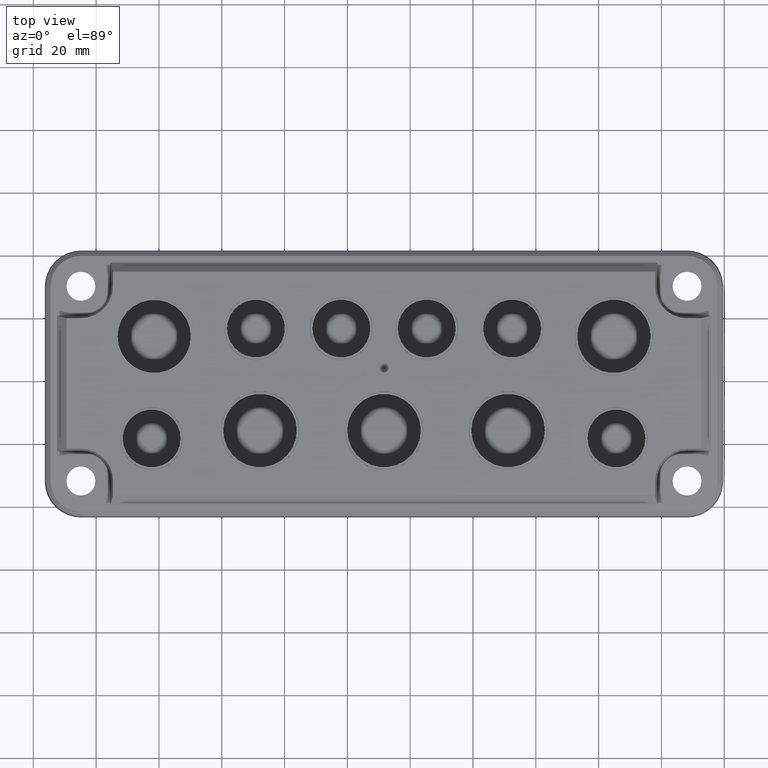
[diagram: clean part render]
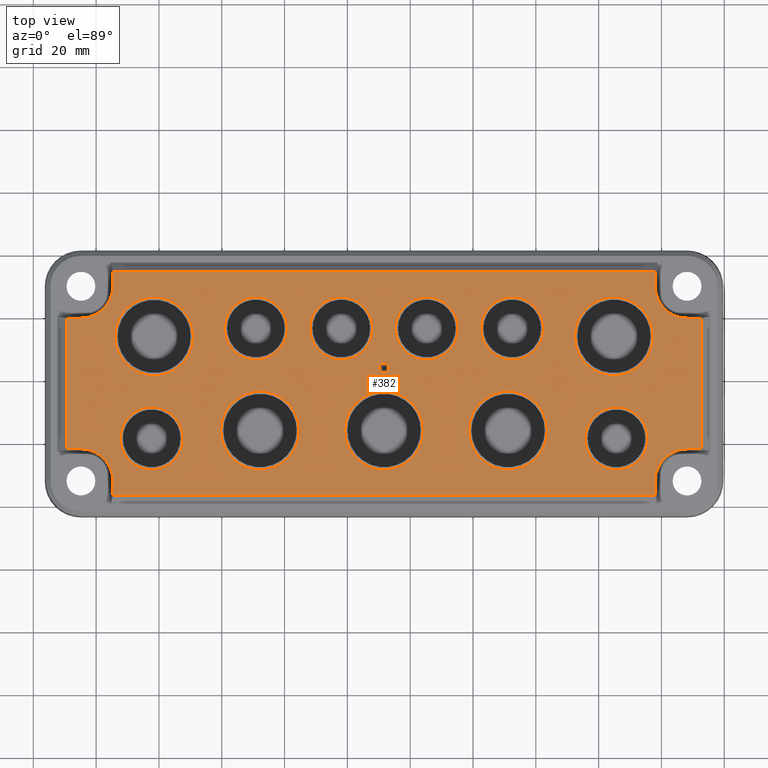
[diagram: same view with one face highlighted and labeled with its STEP entity id]
A machine part, top view. The second image highlights one B-rep face of the part: STEP entity #382.
In plain terms, the highlighted planar face has unit normal (0, 0, 1).
Its self-contained STEP definition (entity closure, byte-faithful):
#2 = AXIS2_PLACEMENT_3D ( 'NONE', #10146, #14187, #12707 ) ;
#7 = DIRECTION ( 'NONE',  ( -0.0000000000000000000, 0.0000000000000000000, -1.000000000000000000 ) ) ;
#41 = VERTEX_POINT ( 'NONE', #1336 ) ;
#93 = AXIS2_PLACEMENT_3D ( 'NONE', #11499, #17014, #9821 ) ;
#118 = AXIS2_PLACEMENT_3D ( 'NONE', #17719, #9667, #13714 ) ;
#199 = ORIENTED_EDGE ( 'NONE', *, *, #13028, .T. ) ;
#221 = DIRECTION ( 'NONE',  ( -0.0000000000000000000, -0.0000000000000000000, -1.000000000000000000 ) ) ;
#244 = DIRECTION ( 'NONE',  ( -1.000000000000000000, 0.0000000000000000000, 0.0000000000000000000 ) ) ;
#297 = EDGE_LOOP ( 'NONE', ( #8575, #12141 ) ) ;
#319 = EDGE_CURVE ( 'NONE', #5922, #2527, #6236, .T. ) ;
#336 = DIRECTION ( 'NONE',  ( 1.000000000000000000, 0.0000000000000000000, 0.0000000000000000000 ) ) ;
#351 = ORIENTED_EDGE ( 'NONE', *, *, #12371, .T. ) ;
#382 = ADVANCED_FACE ( 'NONE', ( #6010, #10531, #14428, #9458, #15060, #16549, #16961, #10969, #10756, #17829, #13322, #9005, #16763 ), #3840, .T. ) ;
#391 = DIRECTION ( 'NONE',  ( 0.0000000000000000000, -1.000000000000000000, 1.734723475976805600E-016 ) ) ;
#417 = EDGE_CURVE ( 'NONE', #3770, #11835, #12874, .T. ) ;
#454 = CIRCLE ( 'NONE', #1783, 10.00000000000000900 ) ;
#564 = LINE ( 'NONE', #15503, #13703 ) ;
#706 = VERTEX_POINT ( 'NONE', #15121 ) ;
#777 = VERTEX_POINT ( 'NONE', #3331 ) ;
#841 = CARTESIAN_POINT ( 'NONE',  ( 138.4606648836394800, 154.0381894054246500, 10.50000000000000000 ) ) ;
#843 = EDGE_CURVE ( 'NONE', #11388, #5484, #4279, .T. ) ;
#890 = ORIENTED_EDGE ( 'NONE', *, *, #13187, .T. ) ;
#910 = AXIS2_PLACEMENT_3D ( 'NONE', #6290, #7427, #11755 ) ;
#968 = CARTESIAN_POINT ( 'NONE',  ( 297.9637589617232700, 103.4739564246825100, 10.50000000000000200 ) ) ;
#1090 = CARTESIAN_POINT ( 'NONE',  ( 110.5964319028973200, 159.8412834835084500, 10.49999999999999800 ) ) ;
#1207 = AXIS2_PLACEMENT_3D ( 'NONE', #12813, #10255, #14174 ) ;
#1257 = AXIS2_PLACEMENT_3D ( 'NONE', #16689, #5570, #12357 ) ;
#1264 = ORIENTED_EDGE ( 'NONE', *, *, #11732, .T. ) ;
#1336 = CARTESIAN_POINT ( 'NONE',  ( 199.1606648836394400, 124.0381894054246300, 10.50000000000000900 ) ) ;
#1362 = VERTEX_POINT ( 'NONE', #9938 ) ;
#1363 = CIRCLE ( 'NONE', #10388, 12.50000000000001100 ) ;
#1372 = CARTESIAN_POINT ( 'NONE',  ( 125.3575708055556200, 181.5381894054245900, 10.50000000000000000 ) ) ;
#1383 = DIRECTION ( 'NONE',  ( -0.0000000000000000000, 0.0000000000000000000, -1.000000000000000000 ) ) ;
#1396 = VERTEX_POINT ( 'NONE', #15302 ) ;
#1442 = DIRECTION ( 'NONE',  ( -1.000000000000000000, -0.0000000000000000000, 0.0000000000000000000 ) ) ;
#1451 = AXIS2_PLACEMENT_3D ( 'NONE', #6975, #2708, #15092 ) ;
#1532 = EDGE_LOOP ( 'NONE', ( #890, #16820, #10572, #17034, #5449, #8492, #16315, #4714, #15656, #351, #17462, #7539, #16618, #1966, #1264, #5202 ) ) ;
#1597 = EDGE_CURVE ( 'NONE', #1362, #1396, #12210, .T. ) ;
#1599 = DIRECTION ( 'NONE',  ( -0.0000000000000000000, -0.0000000000000000000, -1.000000000000000000 ) ) ;
#1619 = EDGE_LOOP ( 'NONE', ( #5403, #8547 ) ) ;
#1705 = VERTEX_POINT ( 'NONE', #4798 ) ;
#1783 = AXIS2_PLACEMENT_3D ( 'NONE', #17837, #5586, #5708 ) ;
#1824 = VERTEX_POINT ( 'NONE', #3727 ) ;
#1966 = ORIENTED_EDGE ( 'NONE', *, *, #14393, .T. ) ;
#2075 = CARTESIAN_POINT ( 'NONE',  ( 213.1606648836736900, 144.0381894054246200, 10.49999999997908200 ) ) ;
#2172 = DIRECTION ( 'NONE',  ( 1.000000000000000000, 0.0000000000000000000, 0.0000000000000000000 ) ) ;
#2182 = EDGE_CURVE ( 'NONE', #1824, #13444, #16306, .T. ) ;
#2264 = DIRECTION ( 'NONE',  ( -0.0000000000000000000, 0.0000000000000000000, -1.000000000000000000 ) ) ;
#2315 = CIRCLE ( 'NONE', #8446, 12.50000000000001100 ) ;
#2321 = CARTESIAN_POINT ( 'NONE',  ( 124.1606648836394400, 118.2350953273407900, 10.50000000000000000 ) ) ;
#2375 = DIRECTION ( 'NONE',  ( 1.000000000000000000, 0.0000000000000000000, 0.0000000000000000000 ) ) ;
#2495 = DIRECTION ( 'NONE',  ( -0.0000000000000000000, 0.0000000000000000000, -1.000000000000000000 ) ) ;
#2521 = LINE ( 'NONE', #2321, #11547 ) ;
#2527 = VERTEX_POINT ( 'NONE', #4119 ) ;
#2601 = EDGE_LOOP ( 'NONE', ( #13353, #13179 ) ) ;
#2663 = DIRECTION ( 'NONE',  ( 1.000000000000000000, 0.0000000000000000000, 0.0000000000000000000 ) ) ;
#2708 = DIRECTION ( 'NONE',  ( -0.0000000000000000000, 0.0000000000000000000, -1.000000000000000000 ) ) ;
#2748 = VERTEX_POINT ( 'NONE', #9019 ) ;
#2763 = CARTESIAN_POINT ( 'NONE',  ( 252.4606648836394500, 146.5381894054246500, 10.50000000000001100 ) ) ;
#2788 = VERTEX_POINT ( 'NONE', #10666 ) ;
#2922 = CARTESIAN_POINT ( 'NONE',  ( 297.3606648836395200, 154.0381894054246500, 10.50000000000000900 ) ) ;
#2985 = AXIS2_PLACEMENT_3D ( 'NONE', #8118, #6694, #3871 ) ;
#3119 = AXIS2_PLACEMENT_3D ( 'NONE', #10042, #4444, #244 ) ;
#3152 = CARTESIAN_POINT ( 'NONE',  ( 115.1606648836394700, 118.2350953273407400, 10.50000000000000200 ) ) ;
#3192 = EDGE_CURVE ( 'NONE', #16245, #1705, #16913, .T. ) ;
#3232 = DIRECTION ( 'NONE',  ( -1.000000000000000000, -0.0000000000000000000, 0.0000000000000000000 ) ) ;
#3266 = EDGE_CURVE ( 'NONE', #11664, #14150, #16290, .T. ) ;
#3274 = CARTESIAN_POINT ( 'NONE',  ( 125.3575708055556500, 181.5381894054245900, 10.50000000000000000 ) ) ;
#3331 = CARTESIAN_POINT ( 'NONE',  ( 115.1606648836394600, 159.8412834835084500, 10.50000000000000200 ) ) ;
#3336 = VERTEX_POINT ( 'NONE', #11382 ) ;
#3459 = AXIS2_PLACEMENT_3D ( 'NONE', #14691, #13287, #2172 ) ;
#3500 = EDGE_CURVE ( 'NONE', #11643, #6463, #15854, .T. ) ;
#3515 = AXIS2_PLACEMENT_3D ( 'NONE', #13311, #6464, #2375 ) ;
#3524 = DIRECTION ( 'NONE',  ( -1.000000000000000000, -0.0000000000000000000, 0.0000000000000000000 ) ) ;
#3561 = EDGE_LOOP ( 'NONE', ( #11671, #7396 ) ) ;
#3727 = CARTESIAN_POINT ( 'NONE',  ( 208.0606648836395000, 156.5381894054246700, 10.50000000000000900 ) ) ;
#3742 = CIRCLE ( 'NONE', #15296, 10.00000000000000900 ) ;
#3765 = DIRECTION ( 'NONE',  ( 1.000000000000000000, 0.0000000000000000000, 0.0000000000000000000 ) ) ;
#3770 = VERTEX_POINT ( 'NONE', #17179 ) ;
#3791 = ORIENTED_EDGE ( 'NONE', *, *, #3266, .T. ) ;
#3820 = CIRCLE ( 'NONE', #7538, 10.00000000000000900 ) ;
#3840 = PLANE ( 'NONE',  #12409 ) ;
#3843 = DIRECTION ( 'NONE',  ( -0.0000000000000000000, 1.000000000000000000, 0.0000000000000000000 ) ) ;
#3862 = EDGE_LOOP ( 'NONE', ( #8740, #13204 ) ) ;
#3871 = DIRECTION ( 'NONE',  ( 0.0000000000000000000, -1.000000000000000000, 1.734723475976805600E-016 ) ) ;
#3901 = DIRECTION ( 'NONE',  ( 0.0000000000000000000, -1.000000000000000000, -0.0000000000000000000 ) ) ;
#3904 = CARTESIAN_POINT ( 'NONE',  ( 137.6606648836394700, 121.5381894054246200, 10.50000000000000900 ) ) ;
#3960 = CARTESIAN_POINT ( 'NONE',  ( 110.5964319028973400, 181.5381894054245900, 10.50000000000000000 ) ) ;
#3961 = VERTEX_POINT ( 'NONE', #12098 ) ;
#3982 = CIRCLE ( 'NONE', #12960, 10.00000000000000900 ) ;
#4119 = CARTESIAN_POINT ( 'NONE',  ( 110.5964319028973200, 118.2350953273407700, 10.49999999999999800 ) ) ;
#4197 = CARTESIAN_POINT ( 'NONE',  ( 124.1606648836394400, 174.6024223861667500, 10.50000000000000000 ) ) ;
#4204 = AXIS2_PLACEMENT_3D ( 'NONE', #12940, #5921, #8843 ) ;
#4246 = LINE ( 'NONE', #10503, #8321 ) ;
#4279 = CIRCLE ( 'NONE', #93, 10.00000000000000900 ) ;
#4288 = CARTESIAN_POINT ( 'NONE',  ( 211.6606648836394700, 144.0381894054246200, 10.49999999997908200 ) ) ;
#4306 = CARTESIAN_POINT ( 'NONE',  ( 211.6606648836394700, 124.0381894054246300, 10.50000000000000900 ) ) ;
#4382 = CARTESIAN_POINT ( 'NONE',  ( 235.2606648836394600, 156.5381894054246700, 10.50000000000000900 ) ) ;
#4421 = CARTESIAN_POINT ( 'NONE',  ( 180.8606648836394900, 156.5381894054246700, 10.50000000000000900 ) ) ;
#4436 = VERTEX_POINT ( 'NONE', #968 ) ;
#4444 = DIRECTION ( 'NONE',  ( 0.0000000000000000000, 0.0000000000000000000, -1.000000000000000000 ) ) ;
#4449 = EDGE_CURVE ( 'NONE', #13639, #2748, #8286, .T. ) ;
#4484 = CARTESIAN_POINT ( 'NONE',  ( 170.8606648836394900, 156.5381894054246700, 10.50000000000000900 ) ) ;
#4489 = CARTESIAN_POINT ( 'NONE',  ( 124.1606648836394400, 118.2350953273407600, 10.50000000000000000 ) ) ;
#4605 = VECTOR ( 'NONE', #3843, 1000.000000000000000 ) ;
#4713 = EDGE_LOOP ( 'NONE', ( #10749, #199 ) ) ;
#4714 = ORIENTED_EDGE ( 'NONE', *, *, #11010, .T. ) ;
#4752 = CIRCLE ( 'NONE', #17543, 10.00000000000000900 ) ;
#4798 = CARTESIAN_POINT ( 'NONE',  ( 125.3575708055556200, 170.0381894054246200, 10.50000000000000000 ) ) ;
#4919 = VERTEX_POINT ( 'NONE', #16444 ) ;
#5056 = AXIS2_PLACEMENT_3D ( 'NONE', #6462, #2495, #3765 ) ;
#5068 = ORIENTED_EDGE ( 'NONE', *, *, #14112, .T. ) ;
#5078 = DIRECTION ( 'NONE',  ( 1.000000000000000000, 0.0000000000000000000, -0.0000000000000000000 ) ) ;
#5097 = DIRECTION ( 'NONE',  ( -1.000000000000000000, 0.0000000000000000000, 0.0000000000000000000 ) ) ;
#5149 = EDGE_CURVE ( 'NONE', #2788, #4436, #6581, .T. ) ;
#5169 = CIRCLE ( 'NONE', #1207, 10.19690592191617500 ) ;
#5202 = ORIENTED_EDGE ( 'NONE', *, *, #6322, .T. ) ;
#5273 = CARTESIAN_POINT ( 'NONE',  ( 297.9637589617232700, 181.5381894054245900, 10.50000000000000000 ) ) ;
#5403 = ORIENTED_EDGE ( 'NONE', *, *, #5446, .T. ) ;
#5445 = CARTESIAN_POINT ( 'NONE',  ( 285.6606648836394700, 111.5381894054246000, 10.50000000000000900 ) ) ;
#5446 = EDGE_CURVE ( 'NONE', #10379, #7875, #13886, .T. ) ;
#5449 = ORIENTED_EDGE ( 'NONE', *, *, #319, .T. ) ;
#5466 = LINE ( 'NONE', #5273, #4605 ) ;
#5484 = VERTEX_POINT ( 'NONE', #6522 ) ;
#5504 = VERTEX_POINT ( 'NONE', #17517 ) ;
#5561 = CARTESIAN_POINT ( 'NONE',  ( 238.6606648836394700, 124.0381894054246200, 10.50000000000000900 ) ) ;
#5570 = DIRECTION ( 'NONE',  ( -0.0000000000000000000, -0.0000000000000000000, -1.000000000000000000 ) ) ;
#5586 = DIRECTION ( 'NONE',  ( -0.0000000000000000000, 0.0000000000000000000, -1.000000000000000000 ) ) ;
#5692 = EDGE_CURVE ( 'NONE', #11835, #3770, #12785, .T. ) ;
#5708 = DIRECTION ( 'NONE',  ( 1.000000000000000000, 0.0000000000000000000, 0.0000000000000000000 ) ) ;
#5714 = VECTOR ( 'NONE', #16300, 1000.000000000000000 ) ;
#5787 = EDGE_LOOP ( 'NONE', ( #7988, #3791 ) ) ;
#5789 = VERTEX_POINT ( 'NONE', #11781 ) ;
#5821 = EDGE_CURVE ( 'NONE', #14354, #3961, #17082, .T. ) ;
#5832 = VECTOR ( 'NONE', #16600, 1000.000000000000000 ) ;
#5921 = DIRECTION ( 'NONE',  ( -0.0000000000000000000, 0.0000000000000000000, -1.000000000000000000 ) ) ;
#5922 = VERTEX_POINT ( 'NONE', #1090 ) ;
#6010 = FACE_BOUND ( 'NONE', #9169, .T. ) ;
#6210 = EDGE_CURVE ( 'NONE', #12934, #5504, #11068, .T. ) ;
#6236 = LINE ( 'NONE', #3960, #11389 ) ;
#6242 = CARTESIAN_POINT ( 'NONE',  ( 150.9606648836394800, 154.0381894054246500, 10.50000000000000000 ) ) ;
#6290 = CARTESIAN_POINT ( 'NONE',  ( 198.0606648836395000, 156.5381894054246700, 10.50000000000000900 ) ) ;
#6322 = EDGE_CURVE ( 'NONE', #12817, #5789, #5466, .T. ) ;
#6375 = CARTESIAN_POINT ( 'NONE',  ( 184.6606648836395000, 124.0381894054246200, 10.50000000000000900 ) ) ;
#6462 = CARTESIAN_POINT ( 'NONE',  ( 251.1606648836394700, 124.0381894054246200, 10.50000000000000900 ) ) ;
#6463 = VERTEX_POINT ( 'NONE', #12480 ) ;
#6464 = DIRECTION ( 'NONE',  ( -0.0000000000000000000, -0.0000000000000000000, -1.000000000000000000 ) ) ;
#6472 = CIRCLE ( 'NONE', #14694, 10.00000000000000900 ) ;
#6522 = CARTESIAN_POINT ( 'NONE',  ( 252.4606648836394500, 166.5381894054246700, 10.50000000000000700 ) ) ;
#6561 = EDGE_CURVE ( 'NONE', #706, #10874, #6980, .T. ) ;
#6581 = LINE ( 'NONE', #17433, #5714 ) ;
#6694 = DIRECTION ( 'NONE',  ( -0.0000000000000000000, -8.673617379884034200E-017, -1.000000000000000000 ) ) ;
#6695 = CARTESIAN_POINT ( 'NONE',  ( 263.6606648836394700, 124.0381894054246200, 10.50000000000000900 ) ) ;
#6722 = ORIENTED_EDGE ( 'NONE', *, *, #417, .T. ) ;
#6783 = DIRECTION ( 'NONE',  ( 0.0000000000000000000, 0.0000000000000000000, 1.000000000000000000 ) ) ;
#6929 = ORIENTED_EDGE ( 'NONE', *, *, #6210, .T. ) ;
#6975 = CARTESIAN_POINT ( 'NONE',  ( 284.8606648836394600, 154.0381894054246500, 10.50000000000000900 ) ) ;
#6980 = CIRCLE ( 'NONE', #2, 10.00000000000000900 ) ;
#7036 = VECTOR ( 'NONE', #1442, 1000.000000000000000 ) ;
#7088 = AXIS2_PLACEMENT_3D ( 'NONE', #841, #10643, #5097 ) ;
#7180 = DIRECTION ( 'NONE',  ( 0.0000000000000000000, -1.000000000000000000, 0.0000000000000000000 ) ) ;
#7238 = DIRECTION ( 'NONE',  ( -0.0000000000000000000, -8.673617379884034200E-017, -1.000000000000000000 ) ) ;
#7300 = ORIENTED_EDGE ( 'NONE', *, *, #10137, .T. ) ;
#7396 = ORIENTED_EDGE ( 'NONE', *, *, #10720, .T. ) ;
#7417 = DIRECTION ( 'NONE',  ( 1.000000000000000000, 0.0000000000000000000, 0.0000000000000000000 ) ) ;
#7427 = DIRECTION ( 'NONE',  ( -0.0000000000000000000, 0.0000000000000000000, -1.000000000000000000 ) ) ;
#7538 = AXIS2_PLACEMENT_3D ( 'NONE', #3904, #1383, #17772 ) ;
#7539 = ORIENTED_EDGE ( 'NONE', *, *, #13536, .T. ) ;
#7595 = VERTEX_POINT ( 'NONE', #16975 ) ;
#7668 = VECTOR ( 'NONE', #8623, 1000.000000000000000 ) ;
#7687 = LINE ( 'NONE', #13346, #14814 ) ;
#7722 = CARTESIAN_POINT ( 'NONE',  ( 188.0606648836394800, 156.5381894054246700, 10.50000000000000900 ) ) ;
#7875 = VERTEX_POINT ( 'NONE', #5561 ) ;
#7988 = ORIENTED_EDGE ( 'NONE', *, *, #8135, .T. ) ;
#8035 = CARTESIAN_POINT ( 'NONE',  ( 252.4606648836394500, 156.5381894054246700, 10.50000000000000900 ) ) ;
#8118 = CARTESIAN_POINT ( 'NONE',  ( 285.6606648836394700, 121.5381894054246200, 10.50000000000000900 ) ) ;
#8135 = EDGE_CURVE ( 'NONE', #14150, #11664, #1363, .T. ) ;
#8286 = CIRCLE ( 'NONE', #118, 10.19690592191618900 ) ;
#8305 = ORIENTED_EDGE ( 'NONE', *, *, #5692, .T. ) ;
#8315 = CARTESIAN_POINT ( 'NONE',  ( 125.3575708055556000, 174.6024223861667500, 10.49999999999999500 ) ) ;
#8321 = VECTOR ( 'NONE', #3524, 1000.000000000000000 ) ;
#8446 = AXIS2_PLACEMENT_3D ( 'NONE', #17096, #2264, #8915 ) ;
#8492 = ORIENTED_EDGE ( 'NONE', *, *, #14369, .T. ) ;
#8547 = ORIENTED_EDGE ( 'NONE', *, *, #11009, .T. ) ;
#8575 = ORIENTED_EDGE ( 'NONE', *, *, #13433, .T. ) ;
#8623 = DIRECTION ( 'NONE',  ( 1.000000000000000000, 0.0000000000000000000, -0.0000000000000000000 ) ) ;
#8725 = DIRECTION ( 'NONE',  ( -0.0000000000000000000, -0.0000000000000000000, -1.000000000000000000 ) ) ;
#8727 = VECTOR ( 'NONE', #13628, 1000.000000000000000 ) ;
#8740 = ORIENTED_EDGE ( 'NONE', *, *, #15335, .T. ) ;
#8780 = CARTESIAN_POINT ( 'NONE',  ( 225.2606648836394600, 156.5381894054246700, 10.50000000000000900 ) ) ;
#8843 = DIRECTION ( 'NONE',  ( 1.000000000000000000, 0.0000000000000000000, 0.0000000000000000000 ) ) ;
#8915 = DIRECTION ( 'NONE',  ( 1.000000000000000000, 0.0000000000000000000, 0.0000000000000000000 ) ) ;
#9005 = FACE_OUTER_BOUND ( 'NONE', #1532, .T. ) ;
#9019 = CARTESIAN_POINT ( 'NONE',  ( 125.3575708055556500, 108.0381894054245900, 10.50000000000000200 ) ) ;
#9055 = CARTESIAN_POINT ( 'NONE',  ( 312.7248978643815500, 118.2350953273407900, 10.49999999999999800 ) ) ;
#9169 = EDGE_LOOP ( 'NONE', ( #14866, #13967 ) ) ;
#9458 = FACE_BOUND ( 'NONE', #3561, .T. ) ;
#9667 = DIRECTION ( 'NONE',  ( -0.0000000000000000000, -0.0000000000000000000, -1.000000000000000000 ) ) ;
#9699 = CIRCLE ( 'NONE', #4204, 12.50000000000001100 ) ;
#9821 = DIRECTION ( 'NONE',  ( 0.0000000000000000000, -1.000000000000000000, 1.734723475976805600E-016 ) ) ;
#9831 = EDGE_CURVE ( 'NONE', #14085, #7595, #17223, .T. ) ;
#9891 = CARTESIAN_POINT ( 'NONE',  ( 285.6606648836394700, 121.5381894054246200, 10.50000000000000900 ) ) ;
#9938 = CARTESIAN_POINT ( 'NONE',  ( 297.9637589617233300, 108.0381894054246200, 10.50000000000001100 ) ) ;
#9948 = DIRECTION ( 'NONE',  ( 1.000000000000000000, 0.0000000000000000000, 0.0000000000000000000 ) ) ;
#10042 = CARTESIAN_POINT ( 'NONE',  ( 138.4606648836394800, 154.0381894054246500, 10.50000000000000000 ) ) ;
#10085 = DIRECTION ( 'NONE',  ( 1.000000000000000000, 0.0000000000000000000, 0.0000000000000000000 ) ) ;
#10137 = EDGE_CURVE ( 'NONE', #3961, #14354, #4752, .T. ) ;
#10146 = CARTESIAN_POINT ( 'NONE',  ( 170.8606648836394900, 156.5381894054246700, 10.50000000000000900 ) ) ;
#10255 = DIRECTION ( 'NONE',  ( -0.0000000000000000000, 0.0000000000000000000, -1.000000000000000000 ) ) ;
#10379 = VERTEX_POINT ( 'NONE', #6695 ) ;
#10388 = AXIS2_PLACEMENT_3D ( 'NONE', #13352, #13170, #17375 ) ;
#10503 = CARTESIAN_POINT ( 'NONE',  ( 124.1606648836394400, 159.8412834835084500, 10.50000000000000000 ) ) ;
#10531 = FACE_BOUND ( 'NONE', #4713, .T. ) ;
#10572 = ORIENTED_EDGE ( 'NONE', *, *, #10990, .T. ) ;
#10617 = CARTESIAN_POINT ( 'NONE',  ( 137.6606648836394700, 121.5381894054246200, 10.50000000000000900 ) ) ;
#10643 = DIRECTION ( 'NONE',  ( 0.0000000000000000000, 0.0000000000000000000, -1.000000000000000000 ) ) ;
#10666 = CARTESIAN_POINT ( 'NONE',  ( 125.3575708055556500, 103.4739564246825100, 10.50000000000000200 ) ) ;
#10695 = CARTESIAN_POINT ( 'NONE',  ( 124.1606648836394400, 181.5381894054245900, 10.50000000000000000 ) ) ;
#10720 = EDGE_CURVE ( 'NONE', #13444, #1824, #454, .T. ) ;
#10747 = EDGE_CURVE ( 'NONE', #15613, #17491, #14437, .T. ) ;
#10749 = ORIENTED_EDGE ( 'NONE', *, *, #843, .T. ) ;
#10756 = FACE_BOUND ( 'NONE', #1619, .T. ) ;
#10817 = DIRECTION ( 'NONE',  ( -0.0000000000000000000, -8.673617379884039200E-017, -1.000000000000000000 ) ) ;
#10874 = VERTEX_POINT ( 'NONE', #4421 ) ;
#10902 = CARTESIAN_POINT ( 'NONE',  ( 308.1606648836394700, 108.0381894054246200, 10.50000000000001600 ) ) ;
#10932 = EDGE_CURVE ( 'NONE', #6463, #11643, #6472, .T. ) ;
#10969 = FACE_BOUND ( 'NONE', #3862, .T. ) ;
#10990 = EDGE_CURVE ( 'NONE', #1705, #777, #5169, .T. ) ;
#11009 = EDGE_CURVE ( 'NONE', #7875, #10379, #9699, .T. ) ;
#11010 = EDGE_CURVE ( 'NONE', #2748, #2788, #16777, .T. ) ;
#11068 = CIRCLE ( 'NONE', #3119, 12.50000000000001100 ) ;
#11152 = AXIS2_PLACEMENT_3D ( 'NONE', #10902, #7, #2663 ) ;
#11382 = CARTESIAN_POINT ( 'NONE',  ( 308.1606648836394700, 159.8412834835084500, 10.50000000000000700 ) ) ;
#11388 = VERTEX_POINT ( 'NONE', #2763 ) ;
#11389 = VECTOR ( 'NONE', #3901, 1000.000000000000000 ) ;
#11391 = DIRECTION ( 'NONE',  ( -0.0000000000000000000, -4.617035826701432400E-017, -1.000000000000000000 ) ) ;
#11499 = CARTESIAN_POINT ( 'NONE',  ( 252.4606648836394500, 156.5381894054246700, 10.50000000000000900 ) ) ;
#11529 = LINE ( 'NONE', #4489, #7668 ) ;
#11547 = VECTOR ( 'NONE', #5078, 1000.000000000000000 ) ;
#11569 = AXIS2_PLACEMENT_3D ( 'NONE', #4306, #221, #336 ) ;
#11643 = VERTEX_POINT ( 'NONE', #5445 ) ;
#11664 = VERTEX_POINT ( 'NONE', #16393 ) ;
#11671 = ORIENTED_EDGE ( 'NONE', *, *, #2182, .T. ) ;
#11705 = EDGE_CURVE ( 'NONE', #41, #14847, #16357, .T. ) ;
#11732 = EDGE_CURVE ( 'NONE', #3336, #12817, #15908, .T. ) ;
#11755 = DIRECTION ( 'NONE',  ( 1.000000000000000000, 0.0000000000000000000, 0.0000000000000000000 ) ) ;
#11781 = CARTESIAN_POINT ( 'NONE',  ( 297.9637589617232700, 174.6024223861667500, 10.50000000000000200 ) ) ;
#11801 = AXIS2_PLACEMENT_3D ( 'NONE', #8035, #10817, #12242 ) ;
#11835 = VERTEX_POINT ( 'NONE', #2075 ) ;
#11977 = CIRCLE ( 'NONE', #11801, 10.00000000000000900 ) ;
#12098 = CARTESIAN_POINT ( 'NONE',  ( 215.2606648836394600, 156.5381894054246700, 10.50000000000000900 ) ) ;
#12141 = ORIENTED_EDGE ( 'NONE', *, *, #10747, .T. ) ;
#12210 = CIRCLE ( 'NONE', #11152, 10.19690592191613400 ) ;
#12242 = DIRECTION ( 'NONE',  ( 0.0000000000000000000, -1.000000000000000000, 1.734723475976805600E-016 ) ) ;
#12268 = EDGE_LOOP ( 'NONE', ( #8305, #6722 ) ) ;
#12357 = DIRECTION ( 'NONE',  ( 1.000000000000000000, 0.0000000000000000000, 0.0000000000000000000 ) ) ;
#12371 = EDGE_CURVE ( 'NONE', #4436, #1362, #7687, .T. ) ;
#12409 = AXIS2_PLACEMENT_3D ( 'NONE', #10695, #6783, #16161 ) ;
#12480 = CARTESIAN_POINT ( 'NONE',  ( 285.6606648836394700, 131.5381894054246200, 10.50000000000000900 ) ) ;
#12526 = DIRECTION ( 'NONE',  ( -0.0000000000000000000, -0.0000000000000000000, -1.000000000000000000 ) ) ;
#12707 = DIRECTION ( 'NONE',  ( 1.000000000000000000, 0.0000000000000000000, 0.0000000000000000000 ) ) ;
#12785 = CIRCLE ( 'NONE', #13596, 1.500000000034224000 ) ;
#12808 = CIRCLE ( 'NONE', #7088, 12.50000000000001100 ) ;
#12813 = CARTESIAN_POINT ( 'NONE',  ( 115.1606648836394600, 170.0381894054246200, 10.50000000000000200 ) ) ;
#12817 = VERTEX_POINT ( 'NONE', #13324 ) ;
#12874 = CIRCLE ( 'NONE', #1257, 1.500000000034224000 ) ;
#12934 = VERTEX_POINT ( 'NONE', #6242 ) ;
#12940 = CARTESIAN_POINT ( 'NONE',  ( 251.1606648836394700, 124.0381894054246200, 10.50000000000000900 ) ) ;
#12960 = AXIS2_PLACEMENT_3D ( 'NONE', #10617, #17455, #15897 ) ;
#12971 = EDGE_CURVE ( 'NONE', #14147, #4919, #3820, .T. ) ;
#13028 = EDGE_CURVE ( 'NONE', #5484, #11388, #11977, .T. ) ;
#13125 = VECTOR ( 'NONE', #15664, 1000.000000000000000 ) ;
#13170 = DIRECTION ( 'NONE',  ( -0.0000000000000000000, -0.0000000000000000000, -1.000000000000000000 ) ) ;
#13179 = ORIENTED_EDGE ( 'NONE', *, *, #6561, .T. ) ;
#13187 = EDGE_CURVE ( 'NONE', #5789, #16245, #13494, .T. ) ;
#13204 = ORIENTED_EDGE ( 'NONE', *, *, #11705, .T. ) ;
#13287 = DIRECTION ( 'NONE',  ( -0.0000000000000000000, -0.0000000000000000000, -1.000000000000000000 ) ) ;
#13311 = CARTESIAN_POINT ( 'NONE',  ( 211.6606648836394700, 124.0381894054246300, 10.50000000000000900 ) ) ;
#13322 = FACE_BOUND ( 'NONE', #12268, .T. ) ;
#13324 = CARTESIAN_POINT ( 'NONE',  ( 297.9637589617232700, 170.0381894054246200, 10.50000000000000900 ) ) ;
#13346 = CARTESIAN_POINT ( 'NONE',  ( 297.9637589617232700, 181.5381894054245900, 10.50000000000000000 ) ) ;
#13352 = CARTESIAN_POINT ( 'NONE',  ( 172.1606648836395000, 124.0381894054246200, 10.50000000000000900 ) ) ;
#13353 = ORIENTED_EDGE ( 'NONE', *, *, #17346, .T. ) ;
#13404 = EDGE_CURVE ( 'NONE', #777, #5922, #4246, .T. ) ;
#13433 = EDGE_CURVE ( 'NONE', #17491, #15613, #2315, .T. ) ;
#13444 = VERTEX_POINT ( 'NONE', #7722 ) ;
#13494 = LINE ( 'NONE', #4197, #7036 ) ;
#13536 = EDGE_CURVE ( 'NONE', #1396, #14085, #2521, .T. ) ;
#13584 = EDGE_LOOP ( 'NONE', ( #5068, #6929 ) ) ;
#13596 = AXIS2_PLACEMENT_3D ( 'NONE', #4288, #1599, #15423 ) ;
#13628 = DIRECTION ( 'NONE',  ( 0.0000000000000000000, -1.000000000000000000, -0.0000000000000000000 ) ) ;
#13639 = VERTEX_POINT ( 'NONE', #3152 ) ;
#13703 = VECTOR ( 'NONE', #3232, 1000.000000000000000 ) ;
#13714 = DIRECTION ( 'NONE',  ( 1.000000000000000000, 0.0000000000000000000, 0.0000000000000000000 ) ) ;
#13740 = ORIENTED_EDGE ( 'NONE', *, *, #5821, .T. ) ;
#13824 = AXIS2_PLACEMENT_3D ( 'NONE', #13937, #12526, #9948 ) ;
#13886 = CIRCLE ( 'NONE', #5056, 12.50000000000001100 ) ;
#13937 = CARTESIAN_POINT ( 'NONE',  ( 172.1606648836395000, 124.0381894054246200, 10.50000000000000900 ) ) ;
#13967 = ORIENTED_EDGE ( 'NONE', *, *, #10932, .T. ) ;
#14085 = VERTEX_POINT ( 'NONE', #9055 ) ;
#14112 = EDGE_CURVE ( 'NONE', #5504, #12934, #12808, .T. ) ;
#14129 = DIRECTION ( 'NONE',  ( -0.0000000000000000000, 0.0000000000000000000, -1.000000000000000000 ) ) ;
#14147 = VERTEX_POINT ( 'NONE', #14743 ) ;
#14150 = VERTEX_POINT ( 'NONE', #6375 ) ;
#14174 = DIRECTION ( 'NONE',  ( 1.000000000000000000, 0.0000000000000000000, 0.0000000000000000000 ) ) ;
#14187 = DIRECTION ( 'NONE',  ( -0.0000000000000000000, 0.0000000000000000000, -1.000000000000000000 ) ) ;
#14354 = VERTEX_POINT ( 'NONE', #4382 ) ;
#14369 = EDGE_CURVE ( 'NONE', #2527, #13639, #11529, .T. ) ;
#14393 = EDGE_CURVE ( 'NONE', #7595, #3336, #564, .T. ) ;
#14428 = FACE_BOUND ( 'NONE', #17493, .T. ) ;
#14437 = CIRCLE ( 'NONE', #1451, 12.50000000000001100 ) ;
#14688 = DIRECTION ( 'NONE',  ( -0.0000000000000000000, 1.000000000000000000, 0.0000000000000000000 ) ) ;
#14691 = CARTESIAN_POINT ( 'NONE',  ( 225.2606648836394600, 156.5381894054246700, 10.50000000000000900 ) ) ;
#14694 = AXIS2_PLACEMENT_3D ( 'NONE', #9891, #7238, #391 ) ;
#14743 = CARTESIAN_POINT ( 'NONE',  ( 147.6606648836395000, 121.5381894054246200, 10.50000000000000900 ) ) ;
#14814 = VECTOR ( 'NONE', #14688, 1000.000000000000000 ) ;
#14847 = VERTEX_POINT ( 'NONE', #15107 ) ;
#14866 = ORIENTED_EDGE ( 'NONE', *, *, #3500, .T. ) ;
#14987 = CIRCLE ( 'NONE', #3515, 12.50000000000001100 ) ;
#14989 = ORIENTED_EDGE ( 'NONE', *, *, #12971, .T. ) ;
#15060 = FACE_BOUND ( 'NONE', #2601, .T. ) ;
#15092 = DIRECTION ( 'NONE',  ( 1.000000000000000000, 0.0000000000000000000, 0.0000000000000000000 ) ) ;
#15107 = CARTESIAN_POINT ( 'NONE',  ( 224.1606648836394700, 124.0381894054246300, 10.50000000000000900 ) ) ;
#15121 = CARTESIAN_POINT ( 'NONE',  ( 160.8606648836394900, 156.5381894054246700, 10.50000000000000900 ) ) ;
#15289 = CARTESIAN_POINT ( 'NONE',  ( 312.7248978643815500, 181.5381894054245900, 10.50000000000000000 ) ) ;
#15296 = AXIS2_PLACEMENT_3D ( 'NONE', #4484, #14129, #10085 ) ;
#15302 = CARTESIAN_POINT ( 'NONE',  ( 308.1606648836394700, 118.2350953273408000, 10.50000000000000700 ) ) ;
#15335 = EDGE_CURVE ( 'NONE', #14847, #41, #14987, .T. ) ;
#15341 = EDGE_LOOP ( 'NONE', ( #14989, #17189 ) ) ;
#15423 = DIRECTION ( 'NONE',  ( 1.000000000000000000, 0.0000000000000000000, 0.0000000000000000000 ) ) ;
#15438 = CARTESIAN_POINT ( 'NONE',  ( 308.1606648836394700, 170.0381894054246200, 10.50000000000001600 ) ) ;
#15503 = CARTESIAN_POINT ( 'NONE',  ( 124.1606648836394400, 159.8412834835084500, 10.50000000000000000 ) ) ;
#15613 = VERTEX_POINT ( 'NONE', #15711 ) ;
#15656 = ORIENTED_EDGE ( 'NONE', *, *, #5149, .T. ) ;
#15664 = DIRECTION ( 'NONE',  ( 0.0000000000000000000, -1.000000000000000000, -0.0000000000000000000 ) ) ;
#15711 = CARTESIAN_POINT ( 'NONE',  ( 272.3606648836394600, 154.0381894054246500, 10.50000000000000900 ) ) ;
#15854 = CIRCLE ( 'NONE', #2985, 10.00000000000000900 ) ;
#15897 = DIRECTION ( 'NONE',  ( 1.000000000000000000, 0.0000000000000000000, 0.0000000000000000000 ) ) ;
#15908 = CIRCLE ( 'NONE', #16183, 10.19690592191613400 ) ;
#16062 = EDGE_CURVE ( 'NONE', #4919, #14147, #3982, .T. ) ;
#16161 = DIRECTION ( 'NONE',  ( 1.000000000000000000, 0.0000000000000000000, -0.0000000000000000000 ) ) ;
#16183 = AXIS2_PLACEMENT_3D ( 'NONE', #15438, #11391, #7180 ) ;
#16245 = VERTEX_POINT ( 'NONE', #8315 ) ;
#16290 = CIRCLE ( 'NONE', #13824, 12.50000000000001100 ) ;
#16300 = DIRECTION ( 'NONE',  ( 1.000000000000000000, 0.0000000000000000000, -0.0000000000000000000 ) ) ;
#16306 = CIRCLE ( 'NONE', #910, 10.00000000000000900 ) ;
#16315 = ORIENTED_EDGE ( 'NONE', *, *, #4449, .T. ) ;
#16357 = CIRCLE ( 'NONE', #11569, 12.50000000000001100 ) ;
#16393 = CARTESIAN_POINT ( 'NONE',  ( 159.6606648836394700, 124.0381894054246200, 10.50000000000000900 ) ) ;
#16444 = CARTESIAN_POINT ( 'NONE',  ( 127.6606648836394700, 121.5381894054246200, 10.50000000000000900 ) ) ;
#16549 = FACE_BOUND ( 'NONE', #15341, .T. ) ;
#16600 = DIRECTION ( 'NONE',  ( -0.0000000000000000000, 1.000000000000000000, 0.0000000000000000000 ) ) ;
#16618 = ORIENTED_EDGE ( 'NONE', *, *, #9831, .T. ) ;
#16689 = CARTESIAN_POINT ( 'NONE',  ( 211.6606648836394700, 144.0381894054246200, 10.49999999997908200 ) ) ;
#16763 = FACE_BOUND ( 'NONE', #13584, .T. ) ;
#16777 = LINE ( 'NONE', #3274, #13125 ) ;
#16820 = ORIENTED_EDGE ( 'NONE', *, *, #3192, .T. ) ;
#16913 = LINE ( 'NONE', #1372, #8727 ) ;
#16961 = FACE_BOUND ( 'NONE', #5787, .T. ) ;
#16975 = CARTESIAN_POINT ( 'NONE',  ( 312.7248978643815500, 159.8412834835084500, 10.50000000000000200 ) ) ;
#17014 = DIRECTION ( 'NONE',  ( -0.0000000000000000000, -8.673617379884039200E-017, -1.000000000000000000 ) ) ;
#17034 = ORIENTED_EDGE ( 'NONE', *, *, #13404, .T. ) ;
#17082 = CIRCLE ( 'NONE', #3459, 10.00000000000000900 ) ;
#17096 = CARTESIAN_POINT ( 'NONE',  ( 284.8606648836394600, 154.0381894054246500, 10.50000000000000900 ) ) ;
#17179 = CARTESIAN_POINT ( 'NONE',  ( 210.1606648836052500, 144.0381894054246200, 10.49999999997908200 ) ) ;
#17189 = ORIENTED_EDGE ( 'NONE', *, *, #16062, .T. ) ;
#17223 = LINE ( 'NONE', #15289, #5832 ) ;
#17346 = EDGE_CURVE ( 'NONE', #10874, #706, #3742, .T. ) ;
#17375 = DIRECTION ( 'NONE',  ( 1.000000000000000000, 0.0000000000000000000, 0.0000000000000000000 ) ) ;
#17433 = CARTESIAN_POINT ( 'NONE',  ( 124.1606648836394400, 103.4739564246825100, 10.50000000000000000 ) ) ;
#17455 = DIRECTION ( 'NONE',  ( -0.0000000000000000000, 0.0000000000000000000, -1.000000000000000000 ) ) ;
#17462 = ORIENTED_EDGE ( 'NONE', *, *, #1597, .T. ) ;
#17491 = VERTEX_POINT ( 'NONE', #2922 ) ;
#17493 = EDGE_LOOP ( 'NONE', ( #13740, #7300 ) ) ;
#17517 = CARTESIAN_POINT ( 'NONE',  ( 125.9606648836394700, 154.0381894054246500, 10.50000000000000000 ) ) ;
#17543 = AXIS2_PLACEMENT_3D ( 'NONE', #8780, #8725, #7417 ) ;
#17719 = CARTESIAN_POINT ( 'NONE',  ( 115.1606648836394700, 108.0381894054245900, 10.50000000000000200 ) ) ;
#17772 = DIRECTION ( 'NONE',  ( 1.000000000000000000, 0.0000000000000000000, 0.0000000000000000000 ) ) ;
#17829 = FACE_BOUND ( 'NONE', #297, .T. ) ;
#17837 = CARTESIAN_POINT ( 'NONE',  ( 198.0606648836395000, 156.5381894054246700, 10.50000000000000900 ) ) ;